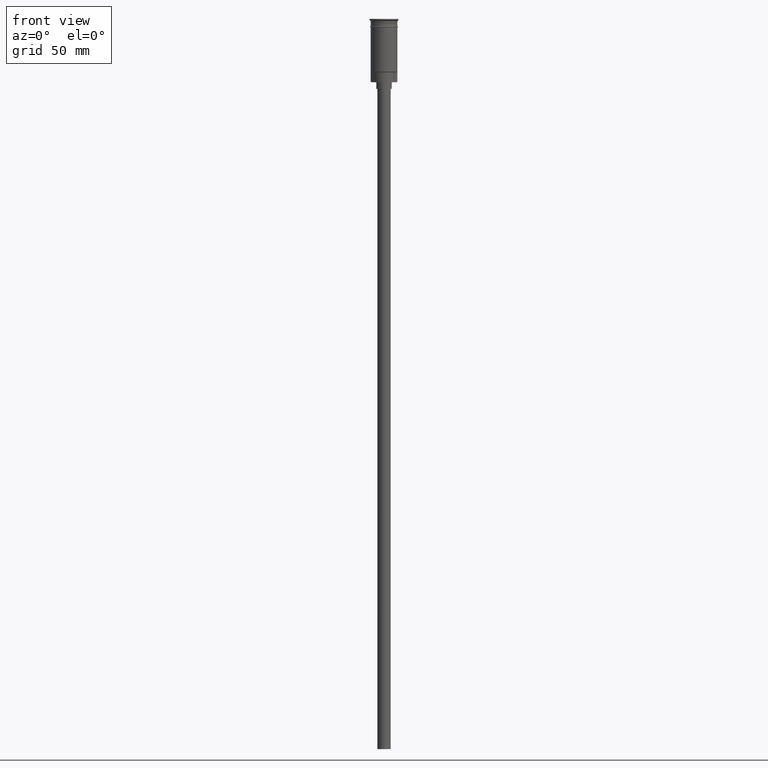
[diagram: clean part render]
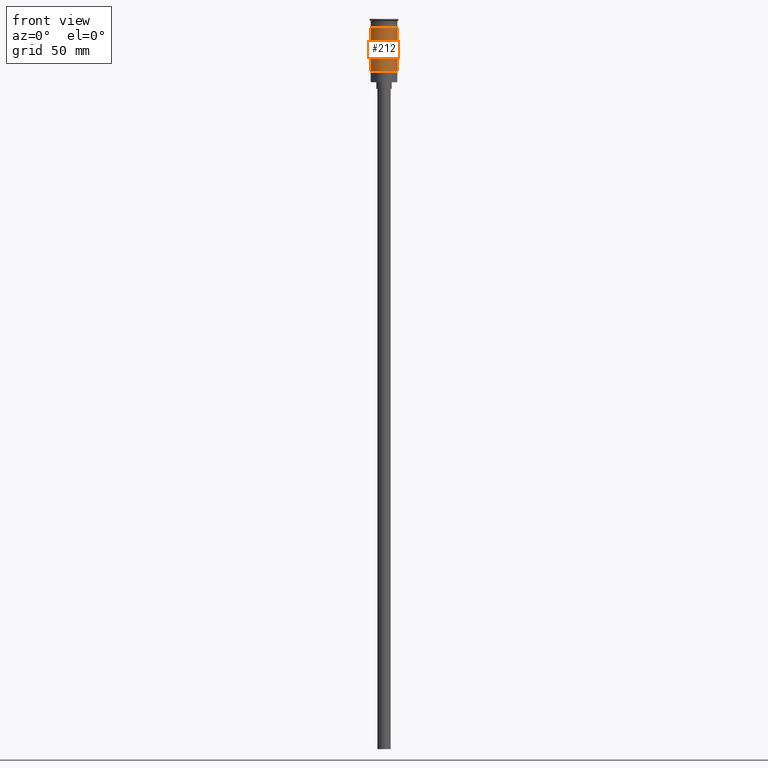
[diagram: same view with one face highlighted and labeled with its STEP entity id]
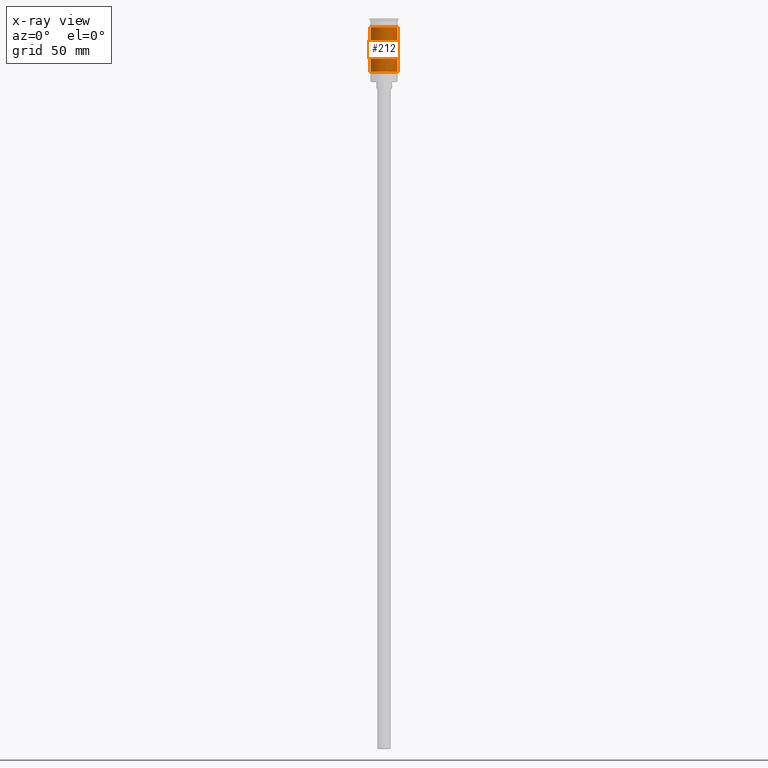
[diagram: x-ray of the same camera — body ghosted, the highlighted face saturated]
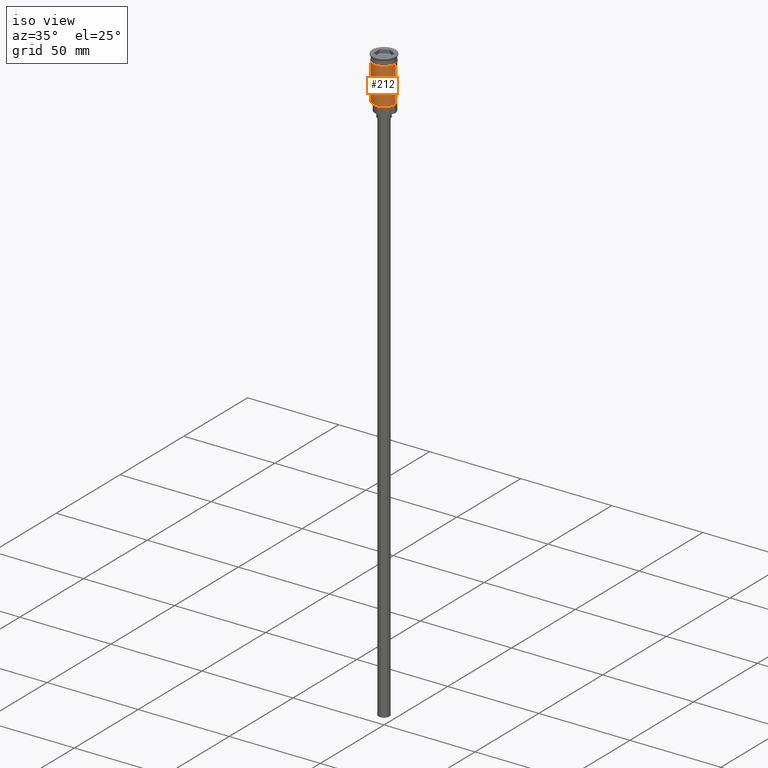
[diagram: same view with one face highlighted and labeled with its STEP entity id]
A machine part, front view. The second image highlights one B-rep face of the part: STEP entity #212.
The next image is the same camera in x-ray: the body ghosted, the highlighted face saturated — about 0% of this face is hidden behind the body in this view.
A second angle (iso view) of the same face is appended — the face is thin or edge-on in the first view.
In plain terms, the highlighted cylindrical surface (edge-blend (fillet) strip) has radius 6 mm, axis along (-0, -0, 1).
Its self-contained STEP definition (entity closure, byte-faithful):
#116 = DIRECTION ( 'NONE',  ( -0.000000000000000000, -0.000000000000000000, 1.000000000000000000 ) ) ;
#138 = DIRECTION ( 'NONE',  ( -0.000000000000000000, -0.000000000000000000, 1.000000000000000000 ) ) ;
#212 = ADVANCED_FACE ( 'NONE', ( #264 ), #1108, .T. ) ;
#264 = FACE_OUTER_BOUND ( 'NONE', #491, .T. ) ;
#280 = VERTEX_POINT ( 'NONE', #807 ) ;
#366 = DIRECTION ( 'NONE',  ( -0.000000000000000000, -0.000000000000000000, 1.000000000000000000 ) ) ;
#405 = VECTOR ( 'NONE', #366, 1000.000000000000000 ) ;
#439 = CARTESIAN_POINT ( 'NONE',  ( -5.999999999999994671, 0.000000000000000000, -23.79999999999995453 ) ) ;
#458 = EDGE_CURVE ( 'NONE', #1398, #280, #1495, .T. ) ;
#477 = CIRCLE ( 'NONE', #1121, 6.000000000000000000 ) ;
#483 = LINE ( 'NONE', #1237, #405 ) ;
#491 = EDGE_LOOP ( 'NONE', ( #1394, #1556, #1339, #1273 ) ) ;
#536 = CARTESIAN_POINT ( 'NONE',  ( -6.000000000000000000, 7.347880794884119736E-16, -3.799999999999998490 ) ) ;
#601 = CARTESIAN_POINT ( 'NONE',  ( 5.999999999999997335, 0.000000000000000000, 0.000000000000000000 ) ) ;
#629 = EDGE_CURVE ( 'NONE', #1577, #1398, #712, .T. ) ;
#640 = DIRECTION ( 'NONE',  ( 1.000000000000000000, 0.000000000000000000, 0.000000000000000000 ) ) ;
#670 = DIRECTION ( 'NONE',  ( -1.000000000000000000, 0.000000000000000000, 0.000000000000000000 ) ) ;
#675 = CARTESIAN_POINT ( 'NONE',  ( 0.000000000000000000, 0.000000000000000000, -23.79999999999995453 ) ) ;
#712 = CIRCLE ( 'NONE', #1066, 5.999999999999997335 ) ;
#807 = CARTESIAN_POINT ( 'NONE',  ( 6.000000000000000000, 0.000000000000000000, -3.799999999999998490 ) ) ;
#848 = DIRECTION ( 'NONE',  ( 1.000000000000000000, 0.000000000000000000, 0.000000000000000000 ) ) ;
#864 = CARTESIAN_POINT ( 'NONE',  ( 0.000000000000000000, 0.000000000000000000, -3.799999999999998490 ) ) ;
#887 = CARTESIAN_POINT ( 'NONE',  ( 0.000000000000000000, 0.000000000000000000, 0.000000000000000000 ) ) ;
#975 = VERTEX_POINT ( 'NONE', #536 ) ;
#1066 = AXIS2_PLACEMENT_3D ( 'NONE', #675, #1165, #670 ) ;
#1098 = DIRECTION ( 'NONE',  ( -0.000000000000000000, -0.000000000000000000, 1.000000000000000000 ) ) ;
#1108 = CYLINDRICAL_SURFACE ( 'NONE', #1196, 5.999999999999997335 ) ;
#1121 = AXIS2_PLACEMENT_3D ( 'NONE', #864, #116, #848 ) ;
#1165 = DIRECTION ( 'NONE',  ( -0.000000000000000000, -0.000000000000000000, 1.000000000000000000 ) ) ;
#1196 = AXIS2_PLACEMENT_3D ( 'NONE', #887, #138, #640 ) ;
#1237 = CARTESIAN_POINT ( 'NONE',  ( -5.999999999999997335, 7.347880794884116778E-16, 0.000000000000000000 ) ) ;
#1273 = ORIENTED_EDGE ( 'NONE', *, *, #1298, .F. ) ;
#1298 = EDGE_CURVE ( 'NONE', #975, #280, #477, .T. ) ;
#1339 = ORIENTED_EDGE ( 'NONE', *, *, #458, .T. ) ;
#1343 = EDGE_CURVE ( 'NONE', #1577, #975, #483, .T. ) ;
#1386 = VECTOR ( 'NONE', #1098, 1000.000000000000000 ) ;
#1394 = ORIENTED_EDGE ( 'NONE', *, *, #1343, .F. ) ;
#1398 = VERTEX_POINT ( 'NONE', #1522 ) ;
#1495 = LINE ( 'NONE', #601, #1386 ) ;
#1522 = CARTESIAN_POINT ( 'NONE',  ( 5.999999999999997335, 7.347880794884115792E-16, -23.79999999999995453 ) ) ;
#1556 = ORIENTED_EDGE ( 'NONE', *, *, #629, .T. ) ;
#1577 = VERTEX_POINT ( 'NONE', #439 ) ;